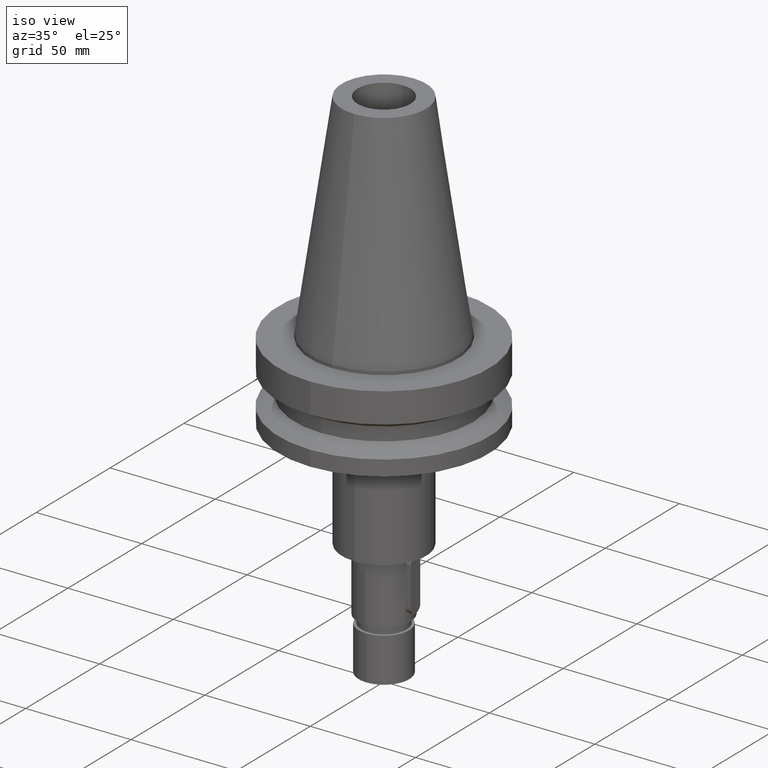
[diagram: clean part render]
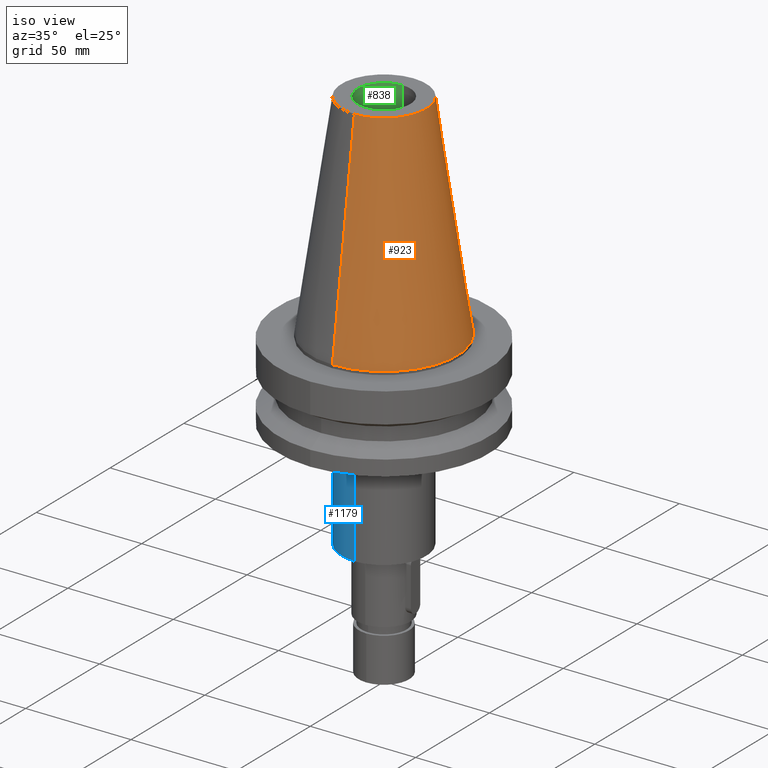
[diagram: same view with three faces highlighted in distinct colors, each labeled with its STEP entity id]
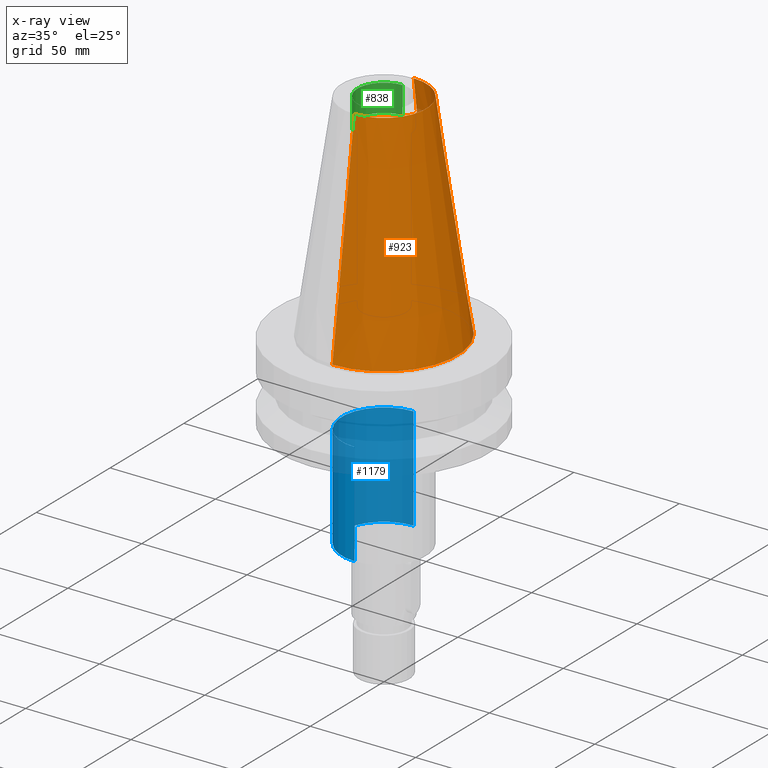
[diagram: x-ray of the same camera — body ghosted, the three highlighted faces saturated]
A machine part, iso view with three faces highlighted in distinct colors.
The next image is the same camera in x-ray (body ghosted, the three faces saturated) — at least one of them is partly hidden behind the body in this view.
Their STEP definitions:

[orange] entity #923 — the highlighted conical surface has half-angle 8.297 deg.
#94=CARTESIAN_POINT('',(0.E0,1.847992019913E-14,1.018E2));
#95=DIRECTION('',(0.E0,0.E0,-1.E0));
#96=DIRECTION('',(0.E0,1.E0,0.E0));
#97=AXIS2_PLACEMENT_3D('',#94,#95,#96);
#126=DIRECTION('',(0.E0,1.443043893539E-1,-9.895333461856E-1));
#127=VECTOR('',#126,1.028767755957E2);
#128=CARTESIAN_POINT('',(0.E0,2.007942971896E1,1.018E2));
#129=LINE('',#128,#127);
#133=CARTESIAN_POINT('',(0.E0,1.847992019913E-14,3.979039320257E-13));
#134=DIRECTION('',(0.E0,0.E0,-1.E0));
#135=DIRECTION('',(0.E0,1.E0,0.E0));
#136=AXIS2_PLACEMENT_3D('',#133,#134,#135);
#141=DIRECTION('',(0.E0,-1.443043893539E-1,-9.895333461856E-1));
#142=VECTOR('',#141,1.028767755957E2);
#143=CARTESIAN_POINT('',(0.E0,-2.007942971896E1,1.018E2));
#144=LINE('',#143,#142);
#718=CARTESIAN_POINT('',(0.E0,2.007942971896E1,1.018E2));
#719=CARTESIAN_POINT('',(0.E0,-2.007942971896E1,1.018E2));
#720=VERTEX_POINT('',#718);
#721=VERTEX_POINT('',#719);
#722=CARTESIAN_POINT('',(0.E0,3.4925E1,4.831690603169E-13));
#723=VERTEX_POINT('',#722);
#724=CARTESIAN_POINT('',(0.E0,-3.4925E1,3.979039320257E-13));
#725=VERTEX_POINT('',#724);
#909=CARTESIAN_POINT('',(0.E0,1.847992019913E-14,5.09E1));
#910=DIRECTION('',(0.E0,0.E0,-1.E0));
#911=DIRECTION('',(0.E0,-1.E0,0.E0));
#912=AXIS2_PLACEMENT_3D('',#909,#910,#911);
#913=CONICAL_SURFACE('',#912,2.750221485948E1,8.297E0);
#915=ORIENTED_EDGE('',*,*,#914,.T.);
#917=ORIENTED_EDGE('',*,*,#916,.T.);
#919=ORIENTED_EDGE('',*,*,#918,.F.);
#920=ORIENTED_EDGE('',*,*,#898,.F.);
#921=EDGE_LOOP('',(#915,#917,#919,#920));
#922=FACE_OUTER_BOUND('',#921,.F.);
#98=CIRCLE('',#97,2.007942971896E1);
#137=CIRCLE('',#136,3.4925E1);
#898=EDGE_CURVE('',#720,#721,#98,.T.);
#914=EDGE_CURVE('',#720,#723,#129,.T.);
#916=EDGE_CURVE('',#723,#725,#137,.T.);
#918=EDGE_CURVE('',#721,#725,#144,.T.);
#923=ADVANCED_FACE('',(#922),#913,.T.);

[blue] entity #1179 — the highlighted cylindrical surface (partial cylindrical patch) has radius 20 mm, axis along (0, 0, -1).
#390=CARTESIAN_POINT('',(0.E0,0.E0,-4.1E1));
#391=DIRECTION('',(0.E0,0.E0,-1.E0));
#392=DIRECTION('',(0.E0,-1.E0,0.E0));
#393=AXIS2_PLACEMENT_3D('',#390,#391,#392);
#398=DIRECTION('',(0.E0,0.E0,-1.E0));
#399=VECTOR('',#398,4.9E1);
#400=CARTESIAN_POINT('',(0.E0,-2.E1,-4.1E1));
#401=LINE('',#400,#399);
#405=DIRECTION('',(0.E0,0.E0,-1.E0));
#406=VECTOR('',#405,4.9E1);
#407=CARTESIAN_POINT('',(0.E0,2.E1,-4.1E1));
#408=LINE('',#407,#406);
#412=CARTESIAN_POINT('',(0.E0,2.622458655694E-14,-9.E1));
#413=DIRECTION('',(0.E0,0.E0,1.E0));
#414=DIRECTION('',(0.E0,1.E0,0.E0));
#415=AXIS2_PLACEMENT_3D('',#412,#413,#414);
#758=CARTESIAN_POINT('',(0.E0,2.E1,-4.1E1));
#759=VERTEX_POINT('',#758);
#760=CARTESIAN_POINT('',(0.E0,-2.E1,-4.1E1));
#761=VERTEX_POINT('',#760);
#762=CARTESIAN_POINT('',(0.E0,2.E1,-9.E1));
#763=VERTEX_POINT('',#762);
#764=CARTESIAN_POINT('',(0.E0,-2.E1,-9.E1));
#765=VERTEX_POINT('',#764);
#1165=CARTESIAN_POINT('',(0.E0,2.622458655694E-14,1.1414E2));
#1166=DIRECTION('',(0.E0,0.E0,-1.E0));
#1167=DIRECTION('',(0.E0,-1.E0,0.E0));
#1168=AXIS2_PLACEMENT_3D('',#1165,#1166,#1167);
#1169=CYLINDRICAL_SURFACE('',#1168,2.E1);
#1171=ORIENTED_EDGE('',*,*,#1170,.F.);
#1172=ORIENTED_EDGE('',*,*,#1160,.F.);
#1174=ORIENTED_EDGE('',*,*,#1173,.T.);
#1176=ORIENTED_EDGE('',*,*,#1175,.F.);
#1177=EDGE_LOOP('',(#1171,#1172,#1174,#1176));
#1178=FACE_OUTER_BOUND('',#1177,.F.);
#394=CIRCLE('',#393,2.E1);
#416=CIRCLE('',#415,2.E1);
#1160=EDGE_CURVE('',#761,#759,#394,.T.);
#1170=EDGE_CURVE('',#759,#763,#408,.T.);
#1173=EDGE_CURVE('',#761,#765,#401,.T.);
#1175=EDGE_CURVE('',#763,#765,#416,.T.);
#1179=ADVANCED_FACE('',(#1178),#1169,.T.);

[green] entity #838 — the highlighted cylindrical surface (edge-blend (fillet) strip) has radius 12.5 mm, axis along (0, 0, -1).
#17=DIRECTION('',(0.E0,0.E0,1.E0));
#18=VECTOR('',#17,1.3E1);
#19=CARTESIAN_POINT('',(0.E0,1.25E1,8.88E1));
#20=LINE('',#19,#18);
#25=DIRECTION('',(0.E0,0.E0,1.E0));
#26=VECTOR('',#25,1.3E1);
#27=CARTESIAN_POINT('',(0.E0,-1.25E1,8.88E1));
#28=LINE('',#27,#26);
#32=CARTESIAN_POINT('',(0.E0,2.622458655694E-14,8.88E1));
#33=DIRECTION('',(0.E0,0.E0,-1.E0));
#34=DIRECTION('',(0.E0,-1.E0,0.E0));
#35=AXIS2_PLACEMENT_3D('',#32,#33,#34);
#110=CARTESIAN_POINT('',(0.E0,2.622458655694E-14,1.018E2));
#111=DIRECTION('',(0.E0,0.E0,1.E0));
#112=DIRECTION('',(0.E0,1.E0,0.E0));
#113=AXIS2_PLACEMENT_3D('',#110,#111,#112);
#702=CARTESIAN_POINT('',(0.E0,1.25E1,8.88E1));
#703=CARTESIAN_POINT('',(0.E0,1.25E1,1.018E2));
#704=VERTEX_POINT('',#702);
#705=VERTEX_POINT('',#703);
#706=CARTESIAN_POINT('',(0.E0,-1.25E1,1.018E2));
#707=VERTEX_POINT('',#706);
#708=CARTESIAN_POINT('',(0.E0,-1.25E1,8.88E1));
#709=VERTEX_POINT('',#708);
#825=CARTESIAN_POINT('',(0.E0,2.622458655694E-14,1.1414E2));
#826=DIRECTION('',(0.E0,0.E0,-1.E0));
#827=DIRECTION('',(0.E0,-1.E0,0.E0));
#828=AXIS2_PLACEMENT_3D('',#825,#826,#827);
#829=CYLINDRICAL_SURFACE('',#828,1.25E1);
#830=ORIENTED_EDGE('',*,*,#814,.F.);
#832=ORIENTED_EDGE('',*,*,#831,.F.);
#833=ORIENTED_EDGE('',*,*,#818,.T.);
#835=ORIENTED_EDGE('',*,*,#834,.F.);
#836=EDGE_LOOP('',(#830,#832,#833,#835));
#837=FACE_OUTER_BOUND('',#836,.F.);
#36=CIRCLE('',#35,1.25E1);
#114=CIRCLE('',#113,1.25E1);
#814=EDGE_CURVE('',#704,#705,#20,.T.);
#818=EDGE_CURVE('',#709,#707,#28,.T.);
#831=EDGE_CURVE('',#709,#704,#36,.T.);
#834=EDGE_CURVE('',#705,#707,#114,.T.);
#838=ADVANCED_FACE('',(#837),#829,.F.);